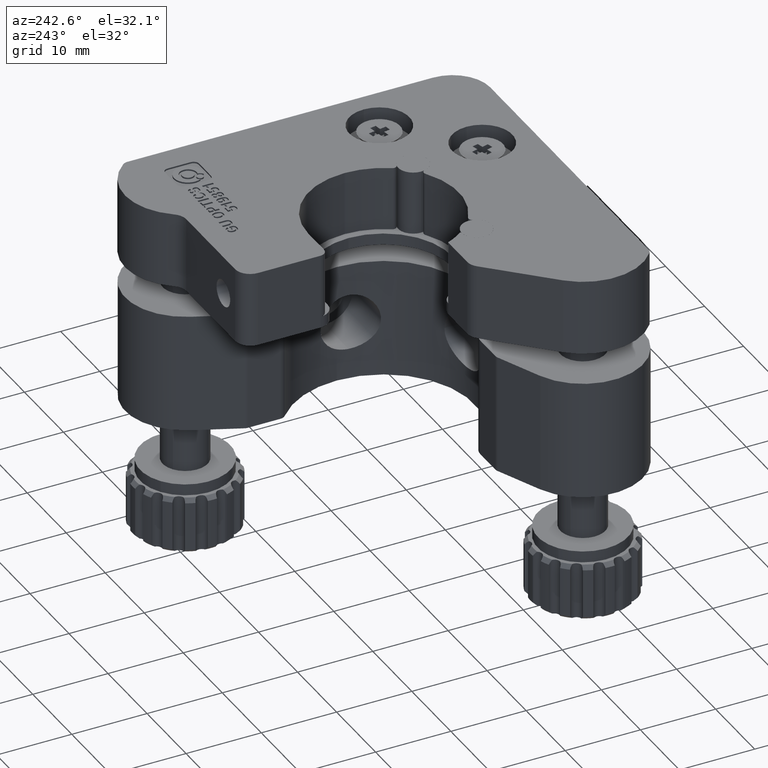
[diagram: clean part render]
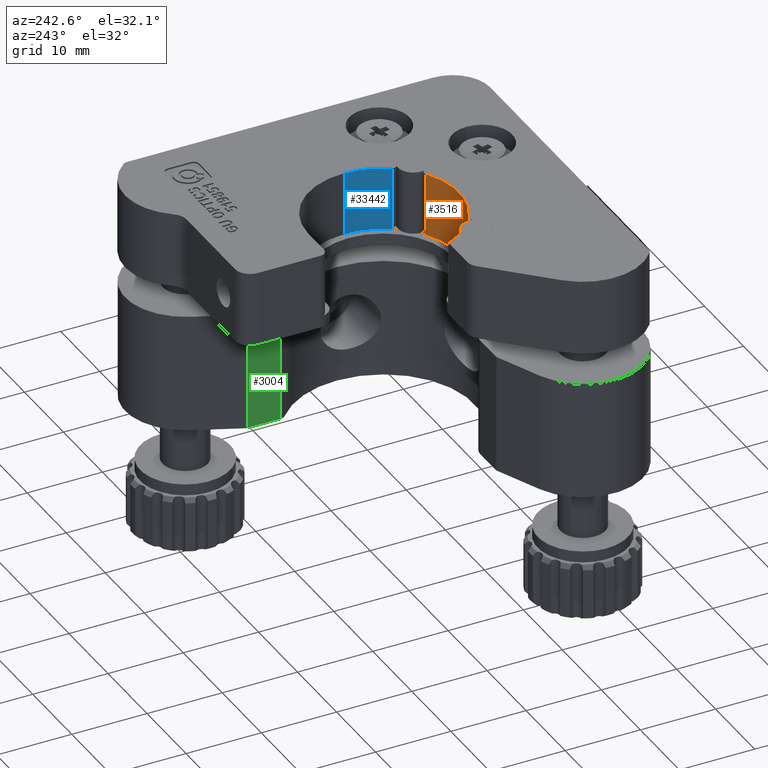
[diagram: same view with three faces highlighted in distinct colors, each labeled with its STEP entity id]
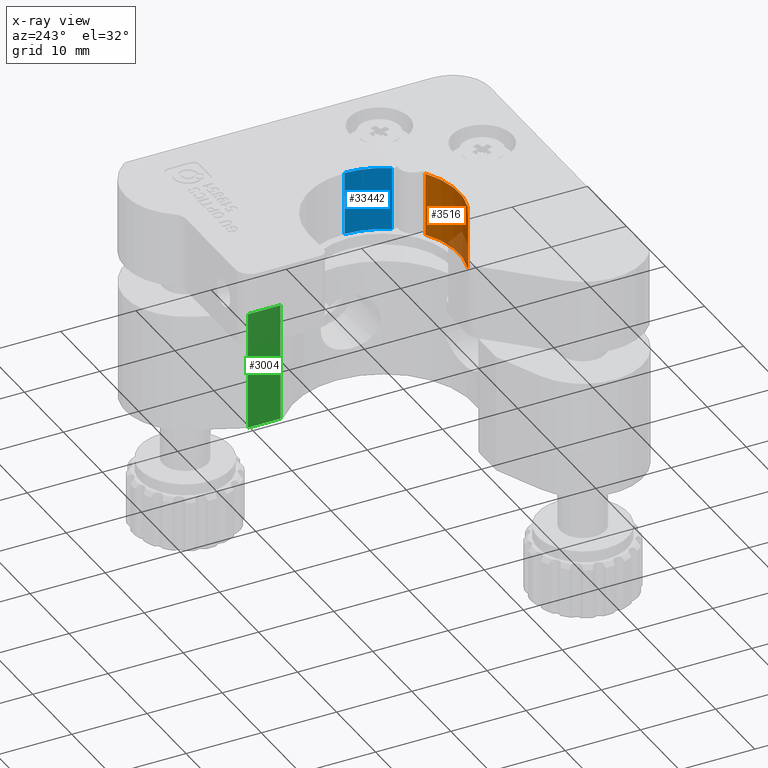
[diagram: x-ray of the same camera — body ghosted, the three highlighted faces saturated]
A machine part, auxiliary view with three faces highlighted in distinct colors.
The next image is the same camera in x-ray (body ghosted, the three faces saturated) — at least one of them is partly hidden behind the body in this view.
Their STEP definitions:

[orange] entity #3516 — the highlighted cylindrical surface (partial cylindrical patch) has radius 10 mm, axis along (-0, -0, 1).
#550 = EDGE_CURVE ( 'NONE', #16468, #8319, #8247, .T. ) ;
#1568 = EDGE_CURVE ( 'NONE', #16468, #16125, #35378, .T. ) ;
#1802 = CARTESIAN_POINT ( 'NONE',  ( 1.763106660868527100, -8.277894610655746300, 47.90000000000000600 ) ) ;
#3145 = CARTESIAN_POINT ( 'NONE',  ( -9.138822196426563200, -8.277894610655753400, 47.90000000000000600 ) ) ;
#3516 = ADVANCED_FACE ( 'NONE', ( #13376 ), #24713, .F. ) ;
#4590 = CARTESIAN_POINT ( 'NONE',  ( -3.687857767779023600, 0.1058388534769909300, 47.90000000000000600 ) ) ;
#5221 = CARTESIAN_POINT ( 'NONE',  ( -3.687857767779023600, 0.1058388534769909300, 56.40000000000000600 ) ) ;
#8061 = DIRECTION ( 'NONE',  ( 1.000000000000000000, 0.0000000000000000000, 0.0000000000000000000 ) ) ;
#8247 = LINE ( 'NONE', #3145, #29668 ) ;
#8278 = AXIS2_PLACEMENT_3D ( 'NONE', #4590, #21384, #26570 ) ;
#8319 = VERTEX_POINT ( 'NONE', #33852 ) ;
#8634 = CIRCLE ( 'NONE', #29822, 10.00000000000000000 ) ;
#13376 = FACE_OUTER_BOUND ( 'NONE', #34693, .T. ) ;
#14003 = EDGE_CURVE ( 'NONE', #16125, #33703, #25274, .T. ) ;
#14930 = ORIENTED_EDGE ( 'NONE', *, *, #1568, .F. ) ;
#16125 = VERTEX_POINT ( 'NONE', #30872 ) ;
#16468 = VERTEX_POINT ( 'NONE', #24046 ) ;
#18316 = ORIENTED_EDGE ( 'NONE', *, *, #25309, .T. ) ;
#18591 = DIRECTION ( 'NONE',  ( -0.0000000000000000000, -0.0000000000000000000, 1.000000000000000000 ) ) ;
#18827 = DIRECTION ( 'NONE',  ( -0.0000000000000000000, -0.0000000000000000000, 1.000000000000000000 ) ) ;
#21384 = DIRECTION ( 'NONE',  ( -0.0000000000000000000, 0.0000000000000000000, 1.000000000000000000 ) ) ;
#24046 = CARTESIAN_POINT ( 'NONE',  ( -9.138822196426563200, -8.277894610655753400, 47.90000000000000600 ) ) ;
#24075 = CARTESIAN_POINT ( 'NONE',  ( 1.763106660868527100, -8.277894610655746300, 56.40000000000000600 ) ) ;
#24394 = VECTOR ( 'NONE', #18591, 1000.000000000000000 ) ;
#24671 = DIRECTION ( 'NONE',  ( -0.0000000000000000000, -0.0000000000000000000, 1.000000000000000000 ) ) ;
#24713 = CYLINDRICAL_SURFACE ( 'NONE', #29408, 10.00000000000000000 ) ;
#24788 = DIRECTION ( 'NONE',  ( -0.0000000000000000000, 0.0000000000000000000, 1.000000000000000000 ) ) ;
#25274 = LINE ( 'NONE', #1802, #24394 ) ;
#25309 = EDGE_CURVE ( 'NONE', #8319, #33703, #8634, .T. ) ;
#26570 = DIRECTION ( 'NONE',  ( 1.000000000000000000, 0.0000000000000000000, 0.0000000000000000000 ) ) ;
#27877 = CARTESIAN_POINT ( 'NONE',  ( -3.687857767779023600, 0.1058388534769909300, 47.90000000000000600 ) ) ;
#29408 = AXIS2_PLACEMENT_3D ( 'NONE', #27877, #18827, #35320 ) ;
#29668 = VECTOR ( 'NONE', #24671, 1000.000000000000000 ) ;
#29822 = AXIS2_PLACEMENT_3D ( 'NONE', #5221, #24788, #8061 ) ;
#30872 = CARTESIAN_POINT ( 'NONE',  ( 1.763106660868527100, -8.277894610655746300, 47.90000000000000600 ) ) ;
#30914 = ORIENTED_EDGE ( 'NONE', *, *, #14003, .F. ) ;
#33703 = VERTEX_POINT ( 'NONE', #24075 ) ;
#33852 = CARTESIAN_POINT ( 'NONE',  ( -9.138822196426563200, -8.277894610655753400, 56.40000000000000600 ) ) ;
#34693 = EDGE_LOOP ( 'NONE', ( #18316, #30914, #14930, #35245 ) ) ;
#35245 = ORIENTED_EDGE ( 'NONE', *, *, #550, .T. ) ;
#35320 = DIRECTION ( 'NONE',  ( 1.000000000000000000, 0.0000000000000000000, 0.0000000000000000000 ) ) ;
#35378 = CIRCLE ( 'NONE', #8278, 10.00000000000000000 ) ;

[blue] entity #33442 — the highlighted cylindrical surface (partial cylindrical patch) has radius 10 mm, axis along (-0, -0, 1).
#686 = AXIS2_PLACEMENT_3D ( 'NONE', #24377, #7660, #27179 ) ;
#828 = DIRECTION ( 'NONE',  ( -0.0000000000000000000, 0.0000000000000000000, 1.000000000000000000 ) ) ;
#1147 = ORIENTED_EDGE ( 'NONE', *, *, #21386, .T. ) ;
#2079 = CARTESIAN_POINT ( 'NONE',  ( 4.695875696353748000, -5.345125575170504500, 47.90000000000000600 ) ) ;
#2165 = FACE_OUTER_BOUND ( 'NONE', #24128, .T. ) ;
#2396 = CARTESIAN_POINT ( 'NONE',  ( 6.312142232220978100, 0.1058388534769909300, 47.90000000000000600 ) ) ;
#3246 = VERTEX_POINT ( 'NONE', #2079 ) ;
#3403 = CARTESIAN_POINT ( 'NONE',  ( -3.687857767779023600, 0.1058388534769909300, 47.90000000000000600 ) ) ;
#4260 = DIRECTION ( 'NONE',  ( -0.0000000000000000000, -0.0000000000000000000, 1.000000000000000000 ) ) ;
#4264 = LINE ( 'NONE', #9647, #10854 ) ;
#5107 = VERTEX_POINT ( 'NONE', #28886 ) ;
#5794 = CIRCLE ( 'NONE', #34018, 10.00000000000000200 ) ;
#6017 = ORIENTED_EDGE ( 'NONE', *, *, #25087, .F. ) ;
#6349 = DIRECTION ( 'NONE',  ( 1.000000000000000000, 0.0000000000000000000, 0.0000000000000000000 ) ) ;
#7648 = CARTESIAN_POINT ( 'NONE',  ( 4.695875696353748000, -5.345125575170504500, 47.90000000000000600 ) ) ;
#7660 = DIRECTION ( 'NONE',  ( -0.0000000000000000000, 0.0000000000000000000, 1.000000000000000000 ) ) ;
#8442 = EDGE_CURVE ( 'NONE', #3246, #25312, #5794, .T. ) ;
#9027 = DIRECTION ( 'NONE',  ( -0.0000000000000000000, -0.0000000000000000000, 1.000000000000000000 ) ) ;
#9647 = CARTESIAN_POINT ( 'NONE',  ( 6.312142232220978100, 0.1058388534769909300, 47.90000000000000600 ) ) ;
#10530 = CIRCLE ( 'NONE', #686, 10.00000000000000200 ) ;
#10854 = VECTOR ( 'NONE', #4260, 1000.000000000000000 ) ;
#14144 = VERTEX_POINT ( 'NONE', #27494 ) ;
#16122 = ORIENTED_EDGE ( 'NONE', *, *, #8442, .F. ) ;
#17612 = CARTESIAN_POINT ( 'NONE',  ( -3.687857767779023600, 0.1058388534769909300, 47.90000000000000600 ) ) ;
#18305 = AXIS2_PLACEMENT_3D ( 'NONE', #3403, #9027, #6349 ) ;
#18469 = EDGE_CURVE ( 'NONE', #5107, #14144, #10530, .T. ) ;
#20423 = DIRECTION ( 'NONE',  ( 1.000000000000000000, 0.0000000000000000000, 0.0000000000000000000 ) ) ;
#21386 = EDGE_CURVE ( 'NONE', #3246, #5107, #23089, .T. ) ;
#23089 = LINE ( 'NONE', #7648, #30499 ) ;
#24128 = EDGE_LOOP ( 'NONE', ( #6017, #16122, #1147, #31872 ) ) ;
#24377 = CARTESIAN_POINT ( 'NONE',  ( -3.687857767779023600, 0.1058388534769909300, 56.40000000000000600 ) ) ;
#25087 = EDGE_CURVE ( 'NONE', #25312, #14144, #4264, .T. ) ;
#25312 = VERTEX_POINT ( 'NONE', #2396 ) ;
#27179 = DIRECTION ( 'NONE',  ( 1.000000000000000000, 0.0000000000000000000, 0.0000000000000000000 ) ) ;
#27494 = CARTESIAN_POINT ( 'NONE',  ( 6.312142232220978100, 0.1058388534769909300, 56.40000000000000600 ) ) ;
#28426 = CYLINDRICAL_SURFACE ( 'NONE', #18305, 10.00000000000000200 ) ;
#28886 = CARTESIAN_POINT ( 'NONE',  ( 4.695875696353748000, -5.345125575170504500, 56.40000000000000600 ) ) ;
#29979 = DIRECTION ( 'NONE',  ( -0.0000000000000000000, -0.0000000000000000000, 1.000000000000000000 ) ) ;
#30499 = VECTOR ( 'NONE', #29979, 1000.000000000000000 ) ;
#31872 = ORIENTED_EDGE ( 'NONE', *, *, #18469, .T. ) ;
#33442 = ADVANCED_FACE ( 'NONE', ( #2165 ), #28426, .F. ) ;
#34018 = AXIS2_PLACEMENT_3D ( 'NONE', #17612, #828, #20423 ) ;

[green] entity #3004 — the highlighted planar face has unit normal (-1, 0, 0).
#103 = ORIENTED_EDGE ( 'NONE', *, *, #12021, .T. ) ;
#794 = PLANE ( 'NONE',  #10907 ) ;
#1100 = VECTOR ( 'NONE', #15585, 1000.000000000000000 ) ;
#1205 = VERTEX_POINT ( 'NONE', #18985 ) ;
#3004 = ADVANCED_FACE ( 'NONE', ( #4179 ), #794, .T. ) ;
#4179 = FACE_OUTER_BOUND ( 'NONE', #30637, .T. ) ;
#8339 = CARTESIAN_POINT ( 'NONE',  ( 3.812142232220983000, 14.26523650465437900, 42.20000000000000300 ) ) ;
#8395 = ORIENTED_EDGE ( 'NONE', *, *, #15784, .F. ) ;
#9983 = VECTOR ( 'NONE', #24209, 1000.000000000000000 ) ;
#10229 = VERTEX_POINT ( 'NONE', #24262 ) ;
#10907 = AXIS2_PLACEMENT_3D ( 'NONE', #8339, #15580, #26266 ) ;
#11120 = EDGE_CURVE ( 'NONE', #10229, #20856, #32275, .T. ) ;
#12021 = EDGE_CURVE ( 'NONE', #1205, #22766, #30866, .T. ) ;
#12716 = CARTESIAN_POINT ( 'NONE',  ( 3.812142232220986600, 14.26523650465437900, 42.20000000000000300 ) ) ;
#13439 = ORIENTED_EDGE ( 'NONE', *, *, #11120, .F. ) ;
#15259 = DIRECTION ( 'NONE',  ( 0.0000000000000000000, 0.0000000000000000000, -1.000000000000000000 ) ) ;
#15580 = DIRECTION ( 'NONE',  ( -1.000000000000000000, 0.0000000000000000000, 0.0000000000000000000 ) ) ;
#15585 = DIRECTION ( 'NONE',  ( 0.0000000000000000000, -1.000000000000000000, 0.0000000000000000000 ) ) ;
#15784 = EDGE_CURVE ( 'NONE', #20856, #22766, #33732, .T. ) ;
#17675 = EDGE_CURVE ( 'NONE', #10229, #1205, #20683, .T. ) ;
#18985 = CARTESIAN_POINT ( 'NONE',  ( 3.812142232220986600, 14.26523650465437900, 26.39999999999999900 ) ) ;
#19801 = VECTOR ( 'NONE', #29437, 1000.000000000000000 ) ;
#20683 = LINE ( 'NONE', #12716, #19801 ) ;
#20856 = VERTEX_POINT ( 'NONE', #30617 ) ;
#21233 = CARTESIAN_POINT ( 'NONE',  ( 3.812142232220983000, 14.26523650465437900, 26.39999999999999900 ) ) ;
#21423 = CARTESIAN_POINT ( 'NONE',  ( 3.812142232220983000, 14.26523650465437900, 42.20000000000000300 ) ) ;
#22766 = VERTEX_POINT ( 'NONE', #23143 ) ;
#23143 = CARTESIAN_POINT ( 'NONE',  ( 3.812142232220983000, 9.941996639929989500, 26.39999999999999900 ) ) ;
#24209 = DIRECTION ( 'NONE',  ( 0.0000000000000000000, -1.000000000000000000, 0.0000000000000000000 ) ) ;
#24262 = CARTESIAN_POINT ( 'NONE',  ( 3.812142232220986600, 14.26523650465437900, 42.20000000000000300 ) ) ;
#26266 = DIRECTION ( 'NONE',  ( 0.0000000000000000000, 0.0000000000000000000, -1.000000000000000000 ) ) ;
#26331 = VECTOR ( 'NONE', #15259, 1000.000000000000000 ) ;
#26365 = CARTESIAN_POINT ( 'NONE',  ( 3.812142232220983000, 9.941996639929989500, 42.20000000000000300 ) ) ;
#26559 = ORIENTED_EDGE ( 'NONE', *, *, #17675, .T. ) ;
#29437 = DIRECTION ( 'NONE',  ( 0.0000000000000000000, 0.0000000000000000000, -1.000000000000000000 ) ) ;
#30617 = CARTESIAN_POINT ( 'NONE',  ( 3.812142232220983000, 9.941996639929989500, 42.20000000000000300 ) ) ;
#30637 = EDGE_LOOP ( 'NONE', ( #103, #8395, #13439, #26559 ) ) ;
#30866 = LINE ( 'NONE', #21233, #1100 ) ;
#32275 = LINE ( 'NONE', #21423, #9983 ) ;
#33732 = LINE ( 'NONE', #26365, #26331 ) ;